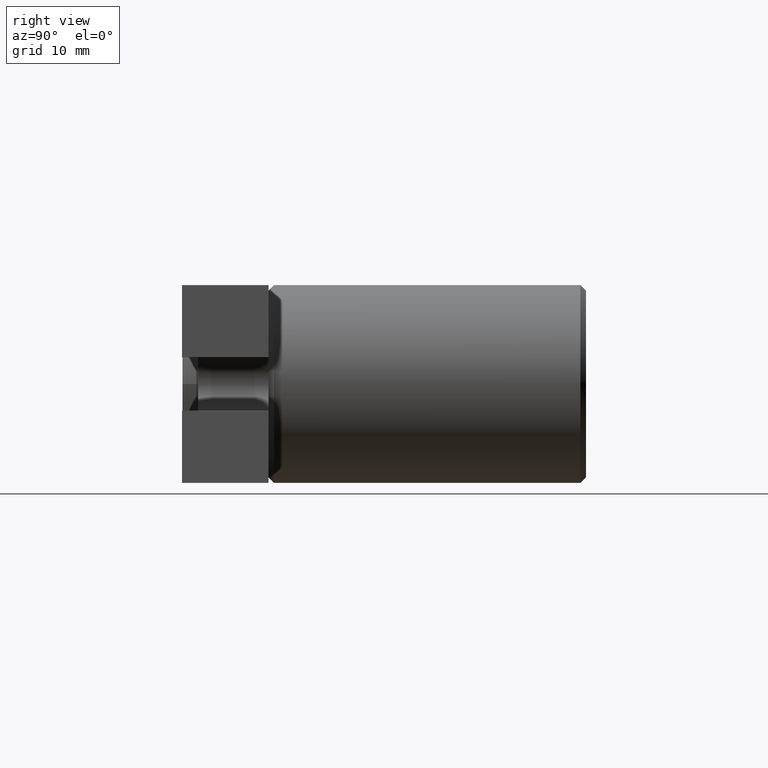
[diagram: clean part render]
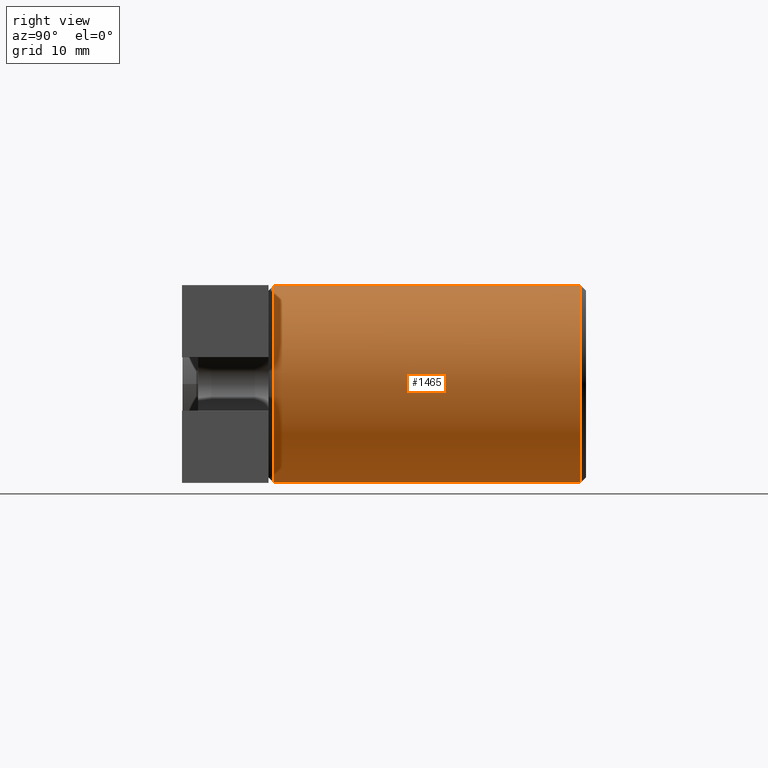
[diagram: same view with one face highlighted and labeled with its STEP entity id]
A machine part, right view. The second image highlights one B-rep face of the part: STEP entity #1465.
In plain terms, the highlighted cylindrical surface (partial cylindrical patch) has radius 12.4968 mm, axis along (-0, -1, -0).
Its self-contained STEP definition (entity closure, byte-faithful):
#97 = EDGE_CURVE ( 'NONE', #2937, #2422, #522, .T. ) ;
#113 = DIRECTION ( 'NONE',  ( -0.0000000000000000000, -1.000000000000000000, -0.0000000000000000000 ) ) ;
#149 = VERTEX_POINT ( 'NONE', #3350 ) ;
#497 = DIRECTION ( 'NONE',  ( -0.0000000000000000000, -1.000000000000000000, -0.0000000000000000000 ) ) ;
#522 = CIRCLE ( 'NONE', #2200, 12.49680000000000600 ) ;
#558 = ORIENTED_EDGE ( 'NONE', *, *, #2673, .T. ) ;
#585 = ORIENTED_EDGE ( 'NONE', *, *, #590, .T. ) ;
#590 = EDGE_CURVE ( 'NONE', #149, #2937, #3152, .T. ) ;
#705 = DIRECTION ( 'NONE',  ( -0.0000000000000000000, 1.000000000000000000, -0.0000000000000000000 ) ) ;
#767 = CARTESIAN_POINT ( 'NONE',  ( 4.123066643891380800, 45.12713478776489500, -1.839923381405735800E-015 ) ) ;
#1057 = VECTOR ( 'NONE', #2663, 1000.000000000000000 ) ;
#1127 = ORIENTED_EDGE ( 'NONE', *, *, #2969, .F. ) ;
#1154 = VECTOR ( 'NONE', #497, 1000.000000000000000 ) ;
#1316 = AXIS2_PLACEMENT_3D ( 'NONE', #3637, #113, #3092 ) ;
#1436 = CARTESIAN_POINT ( 'NONE',  ( 4.123066643891382600, 6.398134787764894900, 12.49680000000000400 ) ) ;
#1465 = ADVANCED_FACE ( 'NONE', ( #2437 ), #1542, .T. ) ;
#1542 = CYLINDRICAL_SURFACE ( 'NONE', #1316, 12.49680000000000600 ) ;
#1551 = DIRECTION ( 'NONE',  ( 0.0000000000000000000, 0.0000000000000000000, 1.000000000000000000 ) ) ;
#1564 = CARTESIAN_POINT ( 'NONE',  ( 4.123066643891380800, 6.398134787764894900, -1.839923381405735800E-015 ) ) ;
#1609 = LINE ( 'NONE', #3811, #1057 ) ;
#1716 = EDGE_LOOP ( 'NONE', ( #558, #585, #2140, #1127 ) ) ;
#1765 = CARTESIAN_POINT ( 'NONE',  ( 4.123066643891380800, 45.12713478776489500, -12.49680000000000700 ) ) ;
#1956 = DIRECTION ( 'NONE',  ( 0.0000000000000000000, 0.0000000000000000000, 1.000000000000000000 ) ) ;
#2140 = ORIENTED_EDGE ( 'NONE', *, *, #97, .T. ) ;
#2200 = AXIS2_PLACEMENT_3D ( 'NONE', #1564, #705, #1551 ) ;
#2255 = CARTESIAN_POINT ( 'NONE',  ( 4.123066643891382600, 45.82713478776489100, 12.49680000000000400 ) ) ;
#2422 = VERTEX_POINT ( 'NONE', #3170 ) ;
#2437 = FACE_OUTER_BOUND ( 'NONE', #1716, .T. ) ;
#2514 = CIRCLE ( 'NONE', #2954, 12.49680000000000600 ) ;
#2663 = DIRECTION ( 'NONE',  ( -0.0000000000000000000, -1.000000000000000000, -0.0000000000000000000 ) ) ;
#2673 = EDGE_CURVE ( 'NONE', #2944, #149, #2514, .T. ) ;
#2937 = VERTEX_POINT ( 'NONE', #1436 ) ;
#2944 = VERTEX_POINT ( 'NONE', #1765 ) ;
#2954 = AXIS2_PLACEMENT_3D ( 'NONE', #767, #3189, #1956 ) ;
#2969 = EDGE_CURVE ( 'NONE', #2944, #2422, #1609, .T. ) ;
#3092 = DIRECTION ( 'NONE',  ( 0.0000000000000000000, 0.0000000000000000000, -1.000000000000000000 ) ) ;
#3152 = LINE ( 'NONE', #2255, #1154 ) ;
#3170 = CARTESIAN_POINT ( 'NONE',  ( 4.123066643891380800, 6.398134787764894900, -12.49680000000000700 ) ) ;
#3189 = DIRECTION ( 'NONE',  ( 0.0000000000000000000, -1.000000000000000000, 0.0000000000000000000 ) ) ;
#3350 = CARTESIAN_POINT ( 'NONE',  ( 4.123066643891382600, 45.12713478776489500, 12.49680000000000400 ) ) ;
#3637 = CARTESIAN_POINT ( 'NONE',  ( 4.123066643891380800, 45.82713478776489100, -1.839923381405735800E-015 ) ) ;
#3811 = CARTESIAN_POINT ( 'NONE',  ( 4.123066643891380800, 45.82713478776489100, -12.49680000000000700 ) ) ;